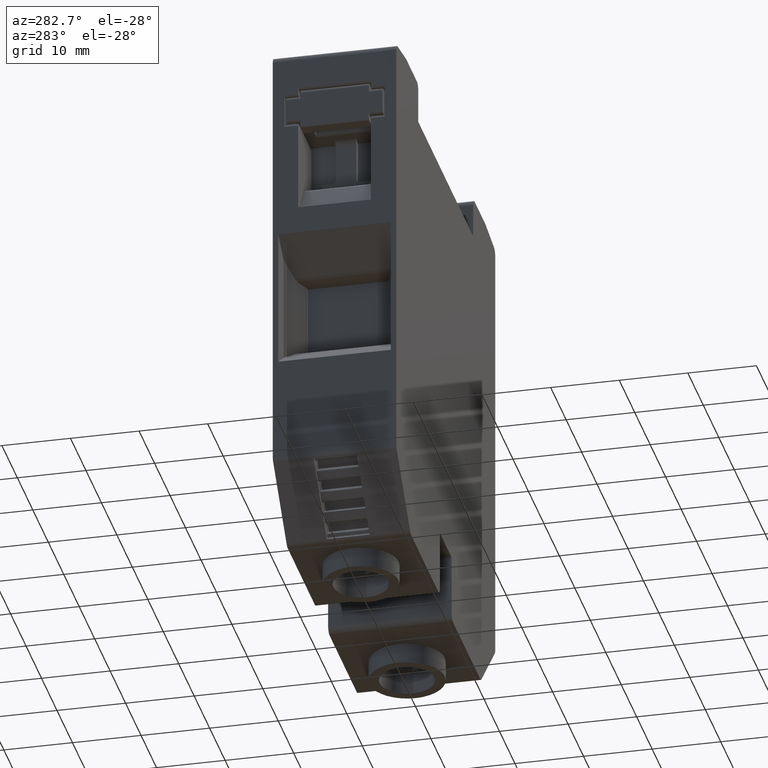
[diagram: clean part render]
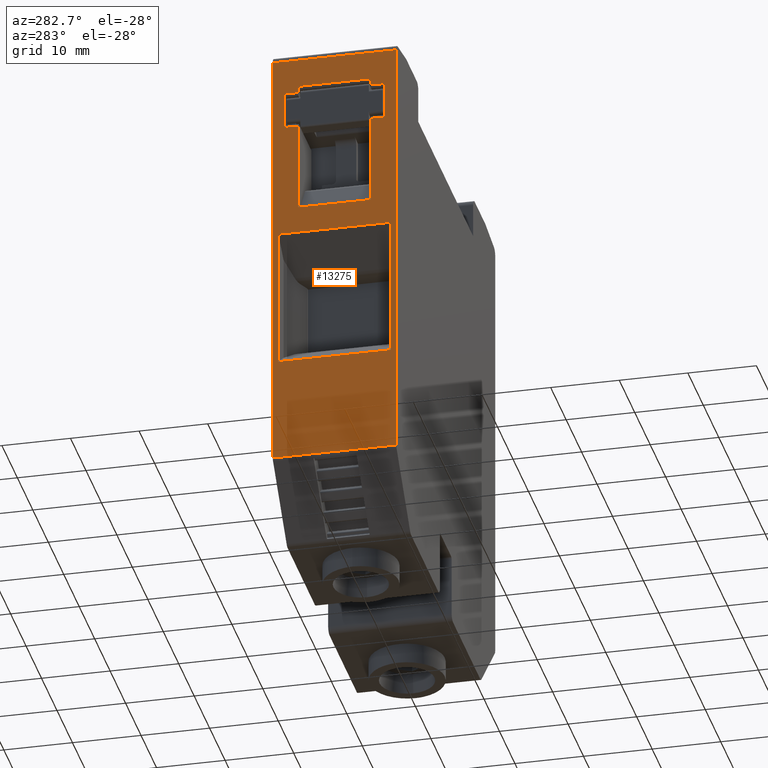
[diagram: same view with one face highlighted and labeled with its STEP entity id]
A machine part, auxiliary view. The second image highlights one B-rep face of the part: STEP entity #13275.
In plain terms, the highlighted planar face has unit normal (-1, -0, -0).
Its self-contained STEP definition (entity closure, byte-faithful):
#1610 = VECTOR ( 'NONE', #19201, 1000.000000000000000 ) ;
#1612 = VECTOR ( 'NONE', #19289, 1000.000000000000000 ) ;
#1613 = VECTOR ( 'NONE', #19277, 1000.000000000000000 ) ;
#1616 = VECTOR ( 'NONE', #19109, 1000.000000000000000 ) ;
#1621 = VECTOR ( 'NONE', #19096, 1000.000000000000000 ) ;
#1633 = VECTOR ( 'NONE', #19097, 1000.000000000000000 ) ;
#1636 = VECTOR ( 'NONE', #19152, 1000.000000000000000 ) ;
#1639 = VECTOR ( 'NONE', #19240, 1000.000000000000000 ) ;
#1642 = VECTOR ( 'NONE', #19066, 1000.000000000000000 ) ;
#1644 = VECTOR ( 'NONE', #19216, 1000.000000000000000 ) ;
#1645 = VECTOR ( 'NONE', #19290, 1000.000000000000100 ) ;
#1649 = VECTOR ( 'NONE', #19578, 1000.000000000000000 ) ;
#1653 = VECTOR ( 'NONE', #19477, 1000.000000000000000 ) ;
#1657 = VECTOR ( 'NONE', #19510, 1000.000000000000000 ) ;
#1664 = VECTOR ( 'NONE', #19346, 1000.000000000000000 ) ;
#1667 = VECTOR ( 'NONE', #19601, 1000.000000000000000 ) ;
#1678 = VECTOR ( 'NONE', #19741, 1000.000000000000000 ) ;
#2564 = EDGE_CURVE ( 'NONE', #22172, #22159, #19051, .T. ) ;
#2567 = EDGE_CURVE ( 'NONE', #22218, #22240, #19068, .T. ) ;
#2572 = EDGE_CURVE ( 'NONE', #22233, #22261, #19098, .T. ) ;
#2579 = EDGE_CURVE ( 'NONE', #22182, #22233, #19124, .T. ) ;
#2582 = EDGE_CURVE ( 'NONE', #22184, #22198, #3052, .T. ) ;
#2586 = EDGE_CURVE ( 'NONE', #22261, #22144, #19185, .T. ) ;
#2591 = EDGE_CURVE ( 'NONE', #22198, #22172, #3063, .T. ) ;
#2600 = EDGE_CURVE ( 'NONE', #22236, #22294, #19202, .T. ) ;
#2601 = EDGE_CURVE ( 'NONE', #22294, #22246, #19218, .T. ) ;
#2605 = EDGE_CURVE ( 'NONE', #22144, #22182, #19188, .T. ) ;
#2612 = EDGE_CURVE ( 'NONE', #22250, #22236, #19256, .T. ) ;
#2624 = EDGE_CURVE ( 'NONE', #22242, #22250, #19333, .T. ) ;
#2626 = EDGE_CURVE ( 'NONE', #22183, #22181, #19337, .T. ) ;
#2640 = EDGE_CURVE ( 'NONE', #22293, #22226, #19389, .T. ) ;
#2657 = EDGE_CURVE ( 'NONE', #22224, #22245, #19455, .T. ) ;
#2658 = EDGE_CURVE ( 'NONE', #22239, #22224, #19519, .T. ) ;
#2675 = EDGE_CURVE ( 'NONE', #22267, #22242, #19584, .T. ) ;
#2678 = EDGE_CURVE ( 'NONE', #22245, #22293, #19593, .T. ) ;
#2687 = EDGE_CURVE ( 'NONE', #22226, #22267, #19709, .T. ) ;
#3052 = B_SPLINE_CURVE_WITH_KNOTS ( 'NONE', 3,
 ( #19111, #19114, #19148, #19137 ),
 .UNSPECIFIED., .F., .F.,
 ( 4, 4 ),
 ( 0.0000000000000000000, 1.000000000000000000 ),
 .UNSPECIFIED. ) ;
#3063 = B_SPLINE_CURVE_WITH_KNOTS ( 'NONE', 3,
 ( #19169, #19171, #19173, #19134 ),
 .UNSPECIFIED., .F., .F.,
 ( 4, 4 ),
 ( 0.0000000000000000000, 1.000000000000000000 ),
 .UNSPECIFIED. ) ;
#4803 = CARTESIAN_POINT ( 'NONE',  ( 67.99836346481724500, 41.07496569330397300, 73.99564332460802500 ) ) ;
#4811 = LINE ( 'NONE', #4816, #15718 ) ;
#4816 = CARTESIAN_POINT ( 'NONE',  ( 67.99836346481721700, 44.77460764097551800, 73.99564332460802500 ) ) ;
#4829 = CARTESIAN_POINT ( 'NONE',  ( 67.99836346481785700, 59.07460764096138900, 73.17897510329893900 ) ) ;
#4839 = DIRECTION ( 'NONE',  ( 9.253514454551253100E-013, -0.0000000000000000000, -1.000000000000000000 ) ) ;
#4851 = LINE ( 'NONE', #4803, #15716 ) ;
#4874 = DIRECTION ( 'NONE',  ( -9.253514454551253100E-013, 0.0000000000000000000, 1.000000000000000000 ) ) ;
#5012 = DIRECTION ( 'NONE',  ( -9.253514454551253100E-013, 0.0000000000000000000, 1.000000000000000000 ) ) ;
#5035 = LINE ( 'NONE', #5078, #15813 ) ;
#5078 = CARTESIAN_POINT ( 'NONE',  ( 67.99836346481714600, 55.37460764094615900, 73.99564332460802500 ) ) ;
#5562 = CARTESIAN_POINT ( 'NONE',  ( 67.99836346481785700, 59.07460764096123300, -4.700182005811774000 ) ) ;
#5563 = DIRECTION ( 'NONE',  ( 2.256091227344979200E-041, -3.230849174988093200E-027, -1.000000000000000000 ) ) ;
#5605 = LINE ( 'NONE', #5562, #15859 ) ;
#5766 = CARTESIAN_POINT ( 'NONE',  ( 67.99836346481832500, 50.07460764096077800, 73.17897510329874000 ) ) ;
#6790 = CARTESIAN_POINT ( 'NONE',  ( 67.99836346486260700, 41.87496569330158300, 24.95240564096445400 ) ) ;
#6802 = CARTESIAN_POINT ( 'NONE',  ( 67.99836346481866700, 50.07460764096077100, 73.18374665454464900 ) ) ;
#6809 = CARTESIAN_POINT ( 'NONE',  ( 67.99836346485277300, 58.27496569330105600, 24.95240564095924900 ) ) ;
#6811 = CARTESIAN_POINT ( 'NONE',  ( 67.99836346481798400, 41.07496569330397300, 73.18374974821584500 ) ) ;
#6824 = CARTESIAN_POINT ( 'NONE',  ( 67.99836346484350700, 58.27496569329949900, 45.48776752350701700 ) ) ;
#6831 = CARTESIAN_POINT ( 'NONE',  ( 67.99836346482648300, 57.37460764094576100, 62.55687007499352600 ) ) ;
#6834 = CARTESIAN_POINT ( 'NONE',  ( 67.99836346489378500, 59.07460764096131100, 9.542004598817154500 ) ) ;
#6838 = CARTESIAN_POINT ( 'NONE',  ( 67.99836346482182100, 55.37460764094586100, 68.95687044772806500 ) ) ;
#6849 = CARTESIAN_POINT ( 'NONE',  ( 67.99836346482408100, 42.77460764097512700, 67.95686976278055600 ) ) ;
#6852 = CARTESIAN_POINT ( 'NONE',  ( 67.99836346482281600, 44.77460764097522600, 67.95686976278057000 ) ) ;
#6853 = CARTESIAN_POINT ( 'NONE',  ( 67.99836346482210600, 44.77460764097541800, 68.95687032291922900 ) ) ;
#6859 = CARTESIAN_POINT ( 'NONE',  ( 67.99836346483689900, 44.77478666714276300, 53.85372384107505200 ) ) ;
#6863 = CARTESIAN_POINT ( 'NONE',  ( 67.99836346487690300, 41.07496569330397300, 9.542237551284069100 ) ) ;
#6881 = CARTESIAN_POINT ( 'NONE',  ( 67.99836346483982700, 55.37460764094460300, 49.49187353359276600 ) ) ;
#6889 = CARTESIAN_POINT ( 'NONE',  ( 67.99836346483989800, 44.77496569331035700, 49.49187353359191400 ) ) ;
#6899 = CARTESIAN_POINT ( 'NONE',  ( 67.99836346484787000, 41.87496569329999100, 45.48776752350276100 ) ) ;
#6903 = CARTESIAN_POINT ( 'NONE',  ( 67.99836346482251800, 55.37460764094605300, 67.95686992919030400 ) ) ;
#6907 = CARTESIAN_POINT ( 'NONE',  ( 67.99836346482780400, 42.77460764097513400, 62.55686763561222800 ) ) ;
#6915 = CARTESIAN_POINT ( 'NONE',  ( 67.99836346482980800, 44.77460764097514100, 62.55686763561717400 ) ) ;
#6917 = CARTESIAN_POINT ( 'NONE',  ( 67.99836346482273100, 57.37460764094575400, 67.95686992919030400 ) ) ;
#6928 = CARTESIAN_POINT ( 'NONE',  ( 67.99836346482773300, 55.37460764094517200, 62.55687007501723000 ) ) ;
#8056 = FACE_OUTER_BOUND ( 'NONE', #21503, .T. ) ;
#8057 = FACE_BOUND ( 'NONE', #21581, .T. ) ;
#8060 = FACE_BOUND ( 'NONE', #21489, .T. ) ;
#8072 = DIRECTION ( 'NONE',  ( -1.000000000000000000, -6.982966722218760200E-015, -9.253514454551253100E-013 ) ) ;
#8076 = PLANE ( 'NONE',  #15936 ) ;
#8092 = DIRECTION ( 'NONE',  ( -9.253514454551253100E-013, 0.0000000000000000000, 1.000000000000000000 ) ) ;
#8095 = CARTESIAN_POINT ( 'NONE',  ( 67.99836346481710300, 60.57460764096112600, 73.99564332460802500 ) ) ;
#13073 = EDGE_CURVE ( 'NONE', #22181, #22184, #4851, .T. ) ;
#13074 = EDGE_CURVE ( 'NONE', #22240, #22239, #4811, .T. ) ;
#13098 = EDGE_CURVE ( 'NONE', #22246, #22218, #5035, .T. ) ;
#13152 = EDGE_CURVE ( 'NONE', #22159, #22183, #5605, .T. ) ;
#13275 = ADVANCED_FACE ( 'NONE', ( #8057, #8060, #8056 ), #8076, .T. ) ;
#15716 = VECTOR ( 'NONE', #4874, 1000.000000000000000 ) ;
#15718 = VECTOR ( 'NONE', #4839, 1000.000000000000000 ) ;
#15813 = VECTOR ( 'NONE', #5012, 1000.000000000000000 ) ;
#15859 = VECTOR ( 'NONE', #5563, 1000.000000000000000 ) ;
#15936 = AXIS2_PLACEMENT_3D ( 'NONE', #8095, #8072, #8092 ) ;
#19051 = LINE ( 'NONE', #19061, #1642 ) ;
#19061 = CARTESIAN_POINT ( 'NONE',  ( 67.99836346481785700, 60.57460764096112600, 73.17897510329893900 ) ) ;
#19066 = DIRECTION ( 'NONE',  ( -6.982966722218760200E-015, 1.000000000000000000, -6.461698349970168300E-027 ) ) ;
#19068 = LINE ( 'NONE', #19115, #1621 ) ;
#19095 = CARTESIAN_POINT ( 'NONE',  ( 67.99836346481711800, 58.27496569330105600, 73.99564332460802500 ) ) ;
#19096 = DIRECTION ( 'NONE',  ( 6.982966722218760200E-015, -1.000000000000000000, 6.461698349970168300E-027 ) ) ;
#19097 = DIRECTION ( 'NONE',  ( -9.253514454551253100E-013, 0.0000000000000000000, 1.000000000000000000 ) ) ;
#19098 = LINE ( 'NONE', #19103, #1616 ) ;
#19103 = CARTESIAN_POINT ( 'NONE',  ( 67.99836346484349300, 60.57460764096112600, 45.48776752350702400 ) ) ;
#19109 = DIRECTION ( 'NONE',  ( 6.982966722218760200E-015, -1.000000000000000000, 6.461698349970168300E-027 ) ) ;
#19111 = CARTESIAN_POINT ( 'NONE',  ( 67.99836346481798400, 41.07496569330397300, 73.18374974821584500 ) ) ;
#19114 = CARTESIAN_POINT ( 'NONE',  ( 67.99836346481797000, 44.07484634252290300, 73.18374974821584500 ) ) ;
#19115 = CARTESIAN_POINT ( 'NONE',  ( 67.99836346482176500, 60.57460764096112600, 68.95687040612411100 ) ) ;
#19124 = LINE ( 'NONE', #19095, #1633 ) ;
#19134 = CARTESIAN_POINT ( 'NONE',  ( 67.99836346481832500, 50.07460764096077800, 73.17897510329874000 ) ) ;
#19137 = CARTESIAN_POINT ( 'NONE',  ( 67.99836346481866700, 50.07460764096077100, 73.18374665454464900 ) ) ;
#19146 = CARTESIAN_POINT ( 'NONE',  ( 67.99836346481723100, 41.87496569329998400, 73.99564332460802500 ) ) ;
#19148 = CARTESIAN_POINT ( 'NONE',  ( 67.99836346481795600, 47.07472699174184800, 73.18374974821584500 ) ) ;
#19152 = DIRECTION ( 'NONE',  ( 9.253514454551253100E-013, -0.0000000000000000000, -1.000000000000000000 ) ) ;
#19169 = CARTESIAN_POINT ( 'NONE',  ( 67.99836346481866700, 50.07460764096077100, 73.18374665454464900 ) ) ;
#19171 = CARTESIAN_POINT ( 'NONE',  ( 67.99836346481792800, 50.07460764096077800, 73.18215819991020500 ) ) ;
#19173 = CARTESIAN_POINT ( 'NONE',  ( 67.99836346481792800, 50.07460764096077800, 73.18056665160456500 ) ) ;
#19185 = LINE ( 'NONE', #19146, #1636 ) ;
#19188 = LINE ( 'NONE', #19260, #1613 ) ;
#19201 = DIRECTION ( 'NONE',  ( 6.982966722218760200E-015, -1.000000000000000000, 6.461698349970168300E-027 ) ) ;
#19202 = LINE ( 'NONE', #19203, #1644 ) ;
#19203 = CARTESIAN_POINT ( 'NONE',  ( 67.99836346481713200, 57.37460764094576100, 73.99564332460802500 ) ) ;
#19216 = DIRECTION ( 'NONE',  ( -9.253514454551253100E-013, 0.0000000000000000000, 1.000000000000000000 ) ) ;
#19218 = LINE ( 'NONE', #19236, #1610 ) ;
#19236 = CARTESIAN_POINT ( 'NONE',  ( 67.99836346482270200, 60.57460764096112600, 67.95686992919030400 ) ) ;
#19240 = DIRECTION ( 'NONE',  ( -6.982966722218760200E-015, 1.000000000000000000, -6.461698349970168300E-027 ) ) ;
#19256 = LINE ( 'NONE', #19257, #1639 ) ;
#19257 = CARTESIAN_POINT ( 'NONE',  ( 67.99836346482769000, 60.57460764096112600, 62.55687007501723000 ) ) ;
#19260 = CARTESIAN_POINT ( 'NONE',  ( 67.99836346486249300, 60.57460764096112600, 24.95240564096445700 ) ) ;
#19277 = DIRECTION ( 'NONE',  ( -6.982966722218760200E-015, 1.000000000000000000, -6.461698349970168300E-027 ) ) ;
#19289 = DIRECTION ( 'NONE',  ( -9.253514454551253100E-013, 0.0000000000000000000, 1.000000000000000000 ) ) ;
#19290 = DIRECTION ( 'NONE',  ( 6.939031933139441500E-015, -0.9999999999162514400, 1.294206115719392900E-005 ) ) ;
#19308 = CARTESIAN_POINT ( 'NONE',  ( 67.99836346487677500, 59.07460764096123300, 9.542004598817154500 ) ) ;
#19333 = LINE ( 'NONE', #19334, #1612 ) ;
#19334 = CARTESIAN_POINT ( 'NONE',  ( 67.99836346481714600, 55.37460764094460300, 73.99564332460802500 ) ) ;
#19337 = LINE ( 'NONE', #19308, #1645 ) ;
#19344 = CARTESIAN_POINT ( 'NONE',  ( 67.99836346481721700, 44.77460764097514100, 73.99564332460802500 ) ) ;
#19346 = DIRECTION ( 'NONE',  ( 9.253514454551253100E-013, -0.0000000000000000000, -1.000000000000000000 ) ) ;
#19389 = LINE ( 'NONE', #19344, #1664 ) ;
#19455 = LINE ( 'NONE', #19475, #1653 ) ;
#19475 = CARTESIAN_POINT ( 'NONE',  ( 67.99836346481723100, 42.77460764097512700, 73.99564332460802500 ) ) ;
#19477 = DIRECTION ( 'NONE',  ( 9.253514454551253100E-013, -0.0000000000000000000, -1.000000000000000000 ) ) ;
#19510 = DIRECTION ( 'NONE',  ( 6.982966722218760200E-015, -1.000000000000000000, 6.461698349970168300E-027 ) ) ;
#19519 = LINE ( 'NONE', #19536, #1657 ) ;
#19536 = CARTESIAN_POINT ( 'NONE',  ( 67.99836346482270200, 60.57460764096112600, 67.95686976278057000 ) ) ;
#19560 = CARTESIAN_POINT ( 'NONE',  ( 67.99836346483978400, 60.57460764096112600, 49.49187353359192100 ) ) ;
#19578 = DIRECTION ( 'NONE',  ( -6.982966722218760200E-015, 1.000000000000000000, -6.461698349970168300E-027 ) ) ;
#19584 = LINE ( 'NONE', #19560, #1649 ) ;
#19593 = LINE ( 'NONE', #19600, #1667 ) ;
#19600 = CARTESIAN_POINT ( 'NONE',  ( 67.99836346482769000, 60.57460764096112600, 62.55686763560729000 ) ) ;
#19601 = DIRECTION ( 'NONE',  ( -6.982966722218760200E-015, 1.000000000000000000, -6.461698349970168300E-027 ) ) ;
#19675 = CARTESIAN_POINT ( 'NONE',  ( 67.99836346481721700, 44.77496569331035700, 73.99564332460802500 ) ) ;
#19709 = LINE ( 'NONE', #19675, #1678 ) ;
#19741 = DIRECTION ( 'NONE',  ( 9.253514454551253100E-013, -0.0000000000000000000, -1.000000000000000000 ) ) ;
#21489 = EDGE_LOOP ( 'NONE', ( #23829, #23825, #23803, #23787 ) ) ;
#21503 = EDGE_LOOP ( 'NONE', ( #23824, #23848, #23846, #23801, #23756, #23755 ) ) ;
#21581 = EDGE_LOOP ( 'NONE', ( #23741, #23751, #23726, #23766, #23764, #23753, #23793, #23849, #23785, #23828, #23729, #23731, #23748 ) ) ;
#22144 = VERTEX_POINT ( 'NONE', #6790 ) ;
#22159 = VERTEX_POINT ( 'NONE', #4829 ) ;
#22172 = VERTEX_POINT ( 'NONE', #5766 ) ;
#22181 = VERTEX_POINT ( 'NONE', #6863 ) ;
#22182 = VERTEX_POINT ( 'NONE', #6809 ) ;
#22183 = VERTEX_POINT ( 'NONE', #6834 ) ;
#22184 = VERTEX_POINT ( 'NONE', #6811 ) ;
#22198 = VERTEX_POINT ( 'NONE', #6802 ) ;
#22218 = VERTEX_POINT ( 'NONE', #6838 ) ;
#22224 = VERTEX_POINT ( 'NONE', #6849 ) ;
#22226 = VERTEX_POINT ( 'NONE', #6859 ) ;
#22233 = VERTEX_POINT ( 'NONE', #6824 ) ;
#22236 = VERTEX_POINT ( 'NONE', #6831 ) ;
#22239 = VERTEX_POINT ( 'NONE', #6852 ) ;
#22240 = VERTEX_POINT ( 'NONE', #6853 ) ;
#22242 = VERTEX_POINT ( 'NONE', #6881 ) ;
#22245 = VERTEX_POINT ( 'NONE', #6907 ) ;
#22246 = VERTEX_POINT ( 'NONE', #6903 ) ;
#22250 = VERTEX_POINT ( 'NONE', #6928 ) ;
#22261 = VERTEX_POINT ( 'NONE', #6899 ) ;
#22267 = VERTEX_POINT ( 'NONE', #6889 ) ;
#22293 = VERTEX_POINT ( 'NONE', #6915 ) ;
#22294 = VERTEX_POINT ( 'NONE', #6917 ) ;
#23726 = ORIENTED_EDGE ( 'NONE', *, *, #2624, .T. ) ;
#23729 = ORIENTED_EDGE ( 'NONE', *, *, #2657, .T. ) ;
#23731 = ORIENTED_EDGE ( 'NONE', *, *, #2678, .T. ) ;
#23741 = ORIENTED_EDGE ( 'NONE', *, *, #2687, .T. ) ;
#23748 = ORIENTED_EDGE ( 'NONE', *, *, #2640, .T. ) ;
#23751 = ORIENTED_EDGE ( 'NONE', *, *, #2675, .T. ) ;
#23753 = ORIENTED_EDGE ( 'NONE', *, *, #2601, .T. ) ;
#23755 = ORIENTED_EDGE ( 'NONE', *, *, #2626, .T. ) ;
#23756 = ORIENTED_EDGE ( 'NONE', *, *, #13152, .T. ) ;
#23764 = ORIENTED_EDGE ( 'NONE', *, *, #2600, .T. ) ;
#23766 = ORIENTED_EDGE ( 'NONE', *, *, #2612, .T. ) ;
#23785 = ORIENTED_EDGE ( 'NONE', *, *, #13074, .T. ) ;
#23787 = ORIENTED_EDGE ( 'NONE', *, *, #2572, .T. ) ;
#23793 = ORIENTED_EDGE ( 'NONE', *, *, #13098, .T. ) ;
#23801 = ORIENTED_EDGE ( 'NONE', *, *, #2564, .T. ) ;
#23803 = ORIENTED_EDGE ( 'NONE', *, *, #2579, .T. ) ;
#23824 = ORIENTED_EDGE ( 'NONE', *, *, #13073, .T. ) ;
#23825 = ORIENTED_EDGE ( 'NONE', *, *, #2605, .T. ) ;
#23828 = ORIENTED_EDGE ( 'NONE', *, *, #2658, .T. ) ;
#23829 = ORIENTED_EDGE ( 'NONE', *, *, #2586, .T. ) ;
#23846 = ORIENTED_EDGE ( 'NONE', *, *, #2591, .T. ) ;
#23848 = ORIENTED_EDGE ( 'NONE', *, *, #2582, .T. ) ;
#23849 = ORIENTED_EDGE ( 'NONE', *, *, #2567, .T. ) ;